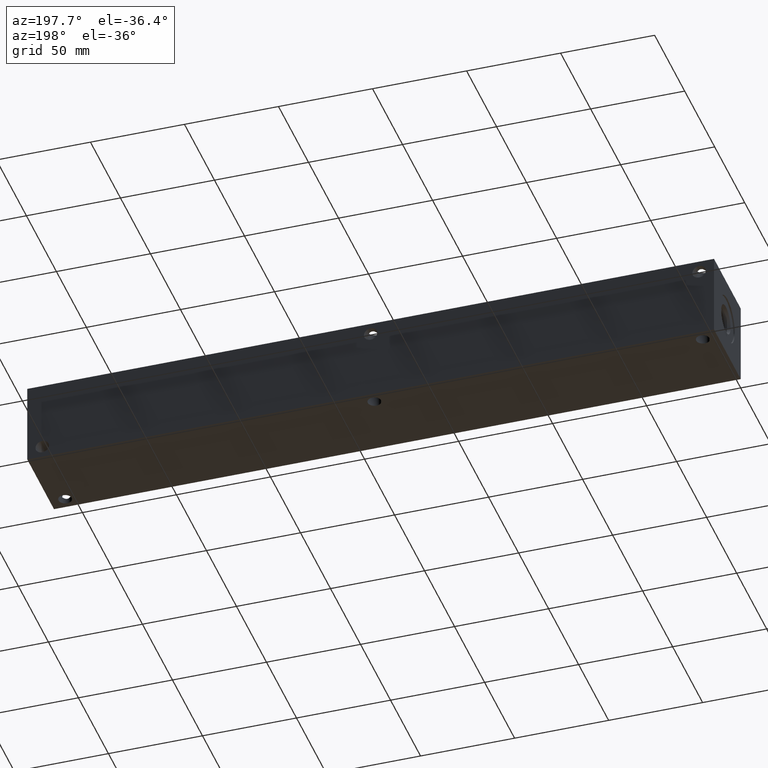
[diagram: clean part render]
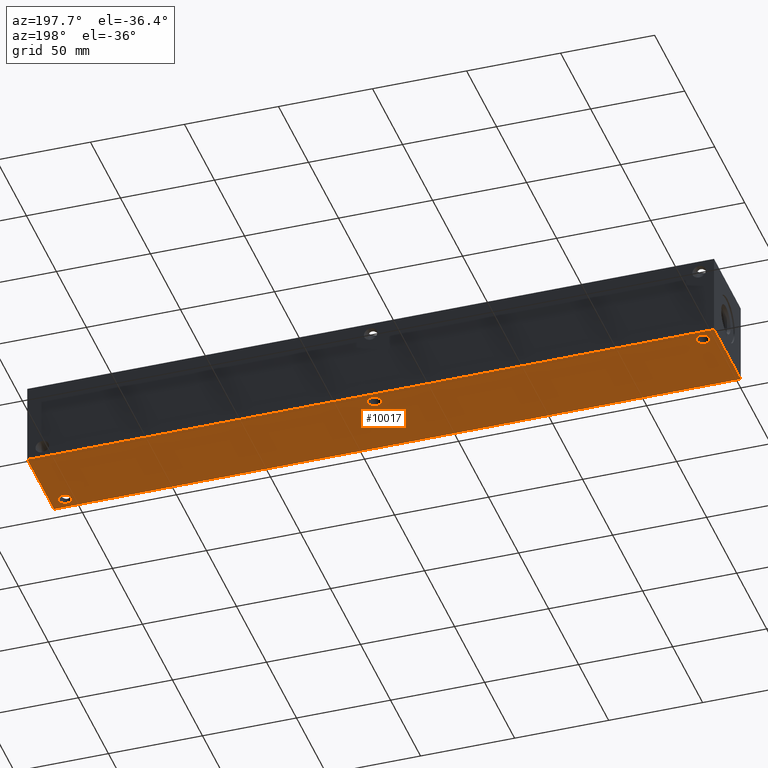
[diagram: same view with one face highlighted and labeled with its STEP entity id]
A machine part, auxiliary view. The second image highlights one B-rep face of the part: STEP entity #10017.
In plain terms, the highlighted planar face has unit normal (0, 0, 1).
Its self-contained STEP definition (entity closure, byte-faithful):
#393=CIRCLE('',#10542,3.5687);
#394=CIRCLE('',#10544,3.5687);
#395=CIRCLE('',#10546,3.5687);
#647=FACE_BOUND('',#2048,.T.);
#648=FACE_BOUND('',#2049,.T.);
#649=FACE_BOUND('',#2050,.T.);
#896=PLANE('',#10818);
#1425=FACE_OUTER_BOUND('',#2047,.T.);
#2047=EDGE_LOOP('',(#9067,#9068,#9069,#9070));
#2048=EDGE_LOOP('',(#9071));
#2049=EDGE_LOOP('',(#9072));
#2050=EDGE_LOOP('',(#9073));
#2862=LINE('',#17510,#3681);
#2865=LINE('',#17515,#3684);
#2867=LINE('',#17519,#3686);
#2869=LINE('',#17522,#3688);
#3681=VECTOR('',#13196,10.);
#3684=VECTOR('',#13201,10.);
#3686=VECTOR('',#13205,10.);
#3688=VECTOR('',#13209,10.);
#4685=VERTEX_POINT('',#16981);
#4686=VERTEX_POINT('',#16985);
#4687=VERTEX_POINT('',#16989);
#4849=VERTEX_POINT('',#17508);
#4850=VERTEX_POINT('',#17509);
#4851=VERTEX_POINT('',#17514);
#4852=VERTEX_POINT('',#17518);
#6001=EDGE_CURVE('',#4685,#4685,#393,.T.);
#6003=EDGE_CURVE('',#4686,#4686,#394,.T.);
#6005=EDGE_CURVE('',#4687,#4687,#395,.T.);
#6252=EDGE_CURVE('',#4849,#4850,#2862,.T.);
#6255=EDGE_CURVE('',#4851,#4849,#2865,.T.);
#6257=EDGE_CURVE('',#4852,#4851,#2867,.T.);
#6259=EDGE_CURVE('',#4850,#4852,#2869,.T.);
#9067=ORIENTED_EDGE('',*,*,#6259,.F.);
#9068=ORIENTED_EDGE('',*,*,#6252,.F.);
#9069=ORIENTED_EDGE('',*,*,#6255,.F.);
#9070=ORIENTED_EDGE('',*,*,#6257,.F.);
#9071=ORIENTED_EDGE('',*,*,#6001,.T.);
#9072=ORIENTED_EDGE('',*,*,#6003,.T.);
#9073=ORIENTED_EDGE('',*,*,#6005,.T.);
#10017=ADVANCED_FACE('',(#1425,#647,#648,#649),#896,.F.);
#10542=AXIS2_PLACEMENT_3D('',#16983,#12562,#12563);
#10544=AXIS2_PLACEMENT_3D('',#16987,#12567,#12568);
#10546=AXIS2_PLACEMENT_3D('',#16991,#12572,#12573);
#10818=AXIS2_PLACEMENT_3D('',#17524,#13212,#13213);
#12562=DIRECTION('center_axis',(0.,0.,1.));
#12563=DIRECTION('ref_axis',(1.,0.,0.));
#12567=DIRECTION('center_axis',(0.,0.,1.));
#12568=DIRECTION('ref_axis',(1.,0.,0.));
#12572=DIRECTION('center_axis',(0.,0.,1.));
#12573=DIRECTION('ref_axis',(1.,0.,0.));
#13196=DIRECTION('',(0.,-1.,0.));
#13201=DIRECTION('',(-1.,0.,0.));
#13205=DIRECTION('',(0.,1.,0.));
#13209=DIRECTION('',(1.,0.,0.));
#13212=DIRECTION('center_axis',(0.,0.,1.));
#13213=DIRECTION('ref_axis',(1.,0.,0.));
#16981=CARTESIAN_POINT('',(353.6061,6.35,0.));
#16983=CARTESIAN_POINT('Origin',(357.1748,6.35,0.));
#16985=CARTESIAN_POINT('',(4.3561,38.1,0.));
#16987=CARTESIAN_POINT('Origin',(7.9248,38.1,0.));
#16989=CARTESIAN_POINT('',(179.0065,38.1,0.));
#16991=CARTESIAN_POINT('Origin',(182.5752,38.1,0.));
#17508=CARTESIAN_POINT('',(0.,44.45,0.));
#17509=CARTESIAN_POINT('',(0.,0.,0.));
#17510=CARTESIAN_POINT('',(0.,44.45,0.));
#17514=CARTESIAN_POINT('',(365.125,44.45,0.));
#17515=CARTESIAN_POINT('',(365.125,44.45,0.));
#17518=CARTESIAN_POINT('',(365.125,0.,0.));
#17519=CARTESIAN_POINT('',(365.125,0.,0.));
#17522=CARTESIAN_POINT('',(0.,0.,0.));
#17524=CARTESIAN_POINT('Origin',(182.5625,22.225,0.));